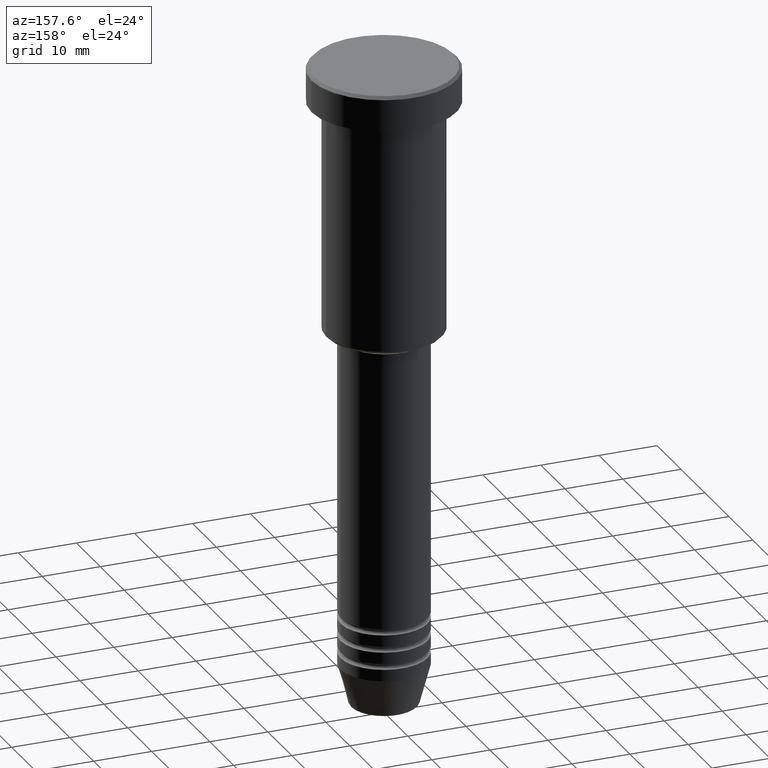
[diagram: clean part render]
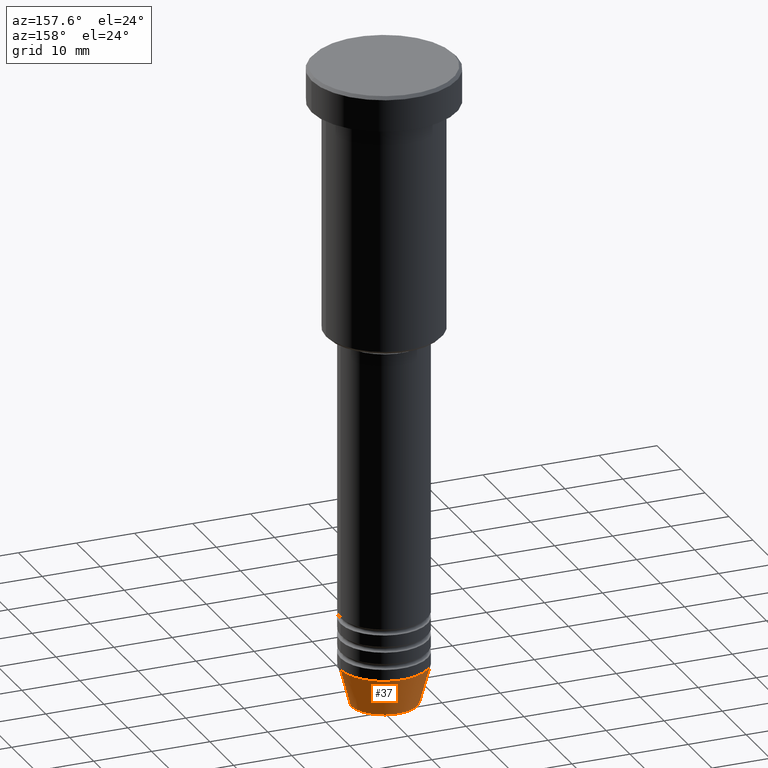
[diagram: same view with one face highlighted and labeled with its STEP entity id]
A machine part, auxiliary view. The second image highlights one B-rep face of the part: STEP entity #37.
In plain terms, the highlighted conical surface has half-angle 15 deg.
Its self-contained STEP definition (entity closure, byte-faithful):
#25 = CARTESIAN_POINT ( 'NONE',  ( 7.500000000000000000, 0.000000000000000000, -104.0000000000000142 ) ) ;
#37 = ADVANCED_FACE ( 'NONE', ( #915 ), #580, .T. ) ;
#44 = EDGE_CURVE ( 'NONE', #1038, #972, #889, .T. ) ;
#73 = CARTESIAN_POINT ( 'NONE',  ( 7.500000000000000000, 0.000000000000000000, -104.0000000000000142 ) ) ;
#99 = DIRECTION ( 'NONE',  ( 1.000000000000000000, 0.000000000000000000, 0.000000000000000000 ) ) ;
#103 = DIRECTION ( 'NONE',  ( 1.000000000000000000, 0.000000000000000000, 0.000000000000000000 ) ) ;
#178 = LINE ( 'NONE', #73, #871 ) ;
#235 = ORIENTED_EDGE ( 'NONE', *, *, #1045, .T. ) ;
#285 = ORIENTED_EDGE ( 'NONE', *, *, #340, .F. ) ;
#340 = EDGE_CURVE ( 'NONE', #429, #1038, #178, .T. ) ;
#376 = DIRECTION ( 'NONE',  ( -0.000000000000000000, -0.000000000000000000, 1.000000000000000000 ) ) ;
#429 = VERTEX_POINT ( 'NONE', #460 ) ;
#440 = CARTESIAN_POINT ( 'NONE',  ( -5.723655072137193933, 8.097153428560737887E-16, -110.6294095225512706 ) ) ;
#448 = DIRECTION ( 'NONE',  ( -0.000000000000000000, -0.000000000000000000, 1.000000000000000000 ) ) ;
#458 = DIRECTION ( 'NONE',  ( -0.000000000000000000, -0.000000000000000000, 1.000000000000000000 ) ) ;
#460 = CARTESIAN_POINT ( 'NONE',  ( 5.723655072137193933, 0.000000000000000000, -110.6294095225512706 ) ) ;
#463 = CARTESIAN_POINT ( 'NONE',  ( 0.000000000000000000, 0.000000000000000000, -104.0000000000000142 ) ) ;
#486 = EDGE_LOOP ( 'NONE', ( #1062, #235, #684, #285 ) ) ;
#489 = LINE ( 'NONE', #1054, #938 ) ;
#580 = CONICAL_SURFACE ( 'NONE', #805, 7.500000000000000000, 0.2617993877991500740 ) ;
#684 = ORIENTED_EDGE ( 'NONE', *, *, #44, .F. ) ;
#740 = DIRECTION ( 'NONE',  ( -0.2588190451025213501, 3.169619151431772337E-17, 0.9659258262890680902 ) ) ;
#805 = AXIS2_PLACEMENT_3D ( 'NONE', #998, #376, #103 ) ;
#849 = CIRCLE ( 'NONE', #886, 5.723655072137193933 ) ;
#871 = VECTOR ( 'NONE', #901, 1000.000000000000000 ) ;
#875 = VERTEX_POINT ( 'NONE', #440 ) ;
#886 = AXIS2_PLACEMENT_3D ( 'NONE', #1173, #448, #99 ) ;
#889 = CIRCLE ( 'NONE', #1178, 7.500000000000000000 ) ;
#901 = DIRECTION ( 'NONE',  ( 0.2588190451025213501, 0.000000000000000000, 0.9659258262890680902 ) ) ;
#915 = FACE_OUTER_BOUND ( 'NONE', #486, .T. ) ;
#933 = CARTESIAN_POINT ( 'NONE',  ( -7.500000000000000000, 9.184850993605147944E-16, -104.0000000000000142 ) ) ;
#936 = EDGE_CURVE ( 'NONE', #429, #875, #849, .T. ) ;
#938 = VECTOR ( 'NONE', #740, 1000.000000000000000 ) ;
#972 = VERTEX_POINT ( 'NONE', #933 ) ;
#998 = CARTESIAN_POINT ( 'NONE',  ( 0.000000000000000000, 0.000000000000000000, -104.0000000000000142 ) ) ;
#1038 = VERTEX_POINT ( 'NONE', #25 ) ;
#1045 = EDGE_CURVE ( 'NONE', #875, #972, #489, .T. ) ;
#1054 = CARTESIAN_POINT ( 'NONE',  ( -7.500000000000000000, 9.184850993605147944E-16, -104.0000000000000142 ) ) ;
#1062 = ORIENTED_EDGE ( 'NONE', *, *, #936, .T. ) ;
#1110 = DIRECTION ( 'NONE',  ( 1.000000000000000000, 0.000000000000000000, 0.000000000000000000 ) ) ;
#1173 = CARTESIAN_POINT ( 'NONE',  ( 0.000000000000000000, 0.000000000000000000, -110.6294095225512706 ) ) ;
#1178 = AXIS2_PLACEMENT_3D ( 'NONE', #463, #458, #1110 ) ;